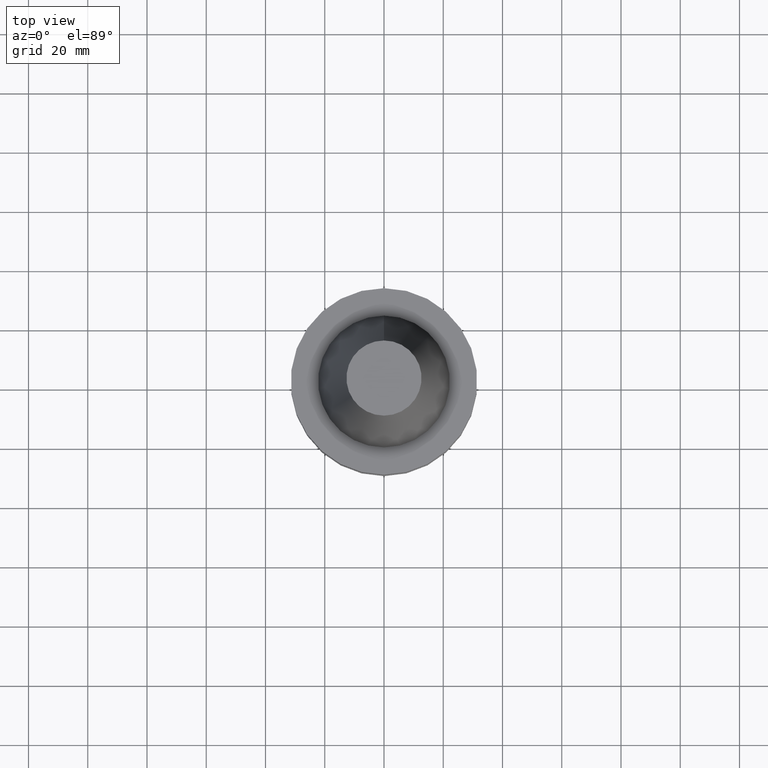
[diagram: clean part render]
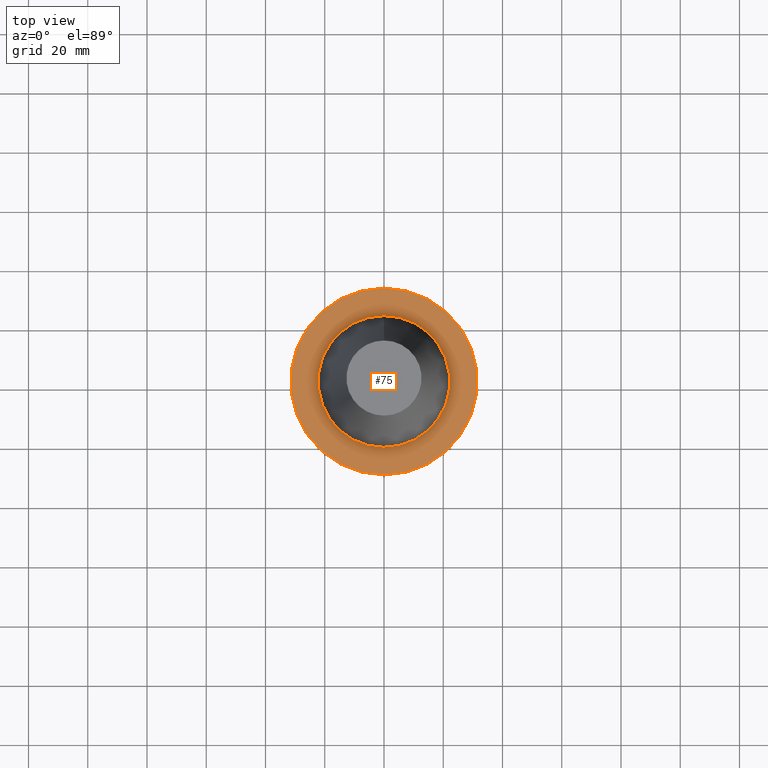
[diagram: same view with one face highlighted and labeled with its STEP entity id]
A machine part, top view. The second image highlights one B-rep face of the part: STEP entity #75.
In plain terms, the highlighted planar face has unit normal (-0, -0, 1).
Its self-contained STEP definition (entity closure, byte-faithful):
#75=ADVANCED_FACE('',(#92,#93),#94,.T.);
#92=FACE_OUTER_BOUND('',#138,.T.);
#93=FACE_BOUND('',#139,.T.);
#94=PLANE('',#140);
#138=EDGE_LOOP('',(#184));
#139=EDGE_LOOP('',(#185));
#140=AXIS2_PLACEMENT_3D('',#186,#187,#188);
#184=ORIENTED_EDGE('',*,*,#262,.F.);
#185=ORIENTED_EDGE('',*,*,#263,.T.);
#186=CARTESIAN_POINT('',(6.12323399573673E-017,26.8625,-0.999999999999997));
#187=DIRECTION('',(-6.12323399573677E-017,-1.22464679914735E-016,1.0));
#188=DIRECTION('',(1.23259516440783E-032,-1.0,-1.22464679914735E-016));
#262=EDGE_CURVE('',#277,#277,#278,.T.);
#263=EDGE_CURVE('',#279,#279,#280,.T.);
#277=VERTEX_POINT('',#307);
#278=CIRCLE('',#308,31.5);
#279=VERTEX_POINT('',#309);
#280=CIRCLE('',#310,22.225);
#307=CARTESIAN_POINT('',(6.12323399573673E-017,31.5,-0.999999999999996));
#308=AXIS2_PLACEMENT_3D('',#337,#338,#339);
#309=CARTESIAN_POINT('',(6.12323399573674E-017,22.225,-0.999999999999997));
#310=AXIS2_PLACEMENT_3D('',#340,#341,#342);
#337=CARTESIAN_POINT('',(6.12323399573677E-017,1.22464679914735E-016,-1.0));
#338=DIRECTION('',(6.12323399573677E-017,1.22464679914735E-016,-1.0));
#339=DIRECTION('',(-1.23259516440783E-032,1.0,1.22464679914735E-016));
#340=CARTESIAN_POINT('',(6.12323399573677E-017,1.22464679914735E-016,-1.0));
#341=DIRECTION('',(6.12323399573677E-017,1.22464679914735E-016,-1.0));
#342=DIRECTION('',(-1.23259516440783E-032,1.0,1.22464679914735E-016));